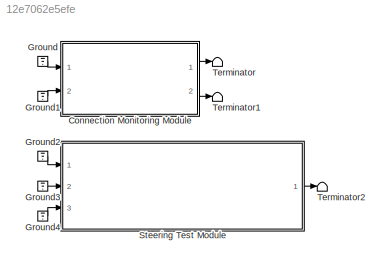
MODEL slx_12e7062e5efe
KIND model
CONFIG AbsTol = auto
CONFIG EnableMultiTasking = on
CONFIG FixedStep = 0.002
CONFIG MaxStep = auto
CONFIG MinStep = auto
CONFIG RelTol = 1e-3
CONFIG SampleTimeConstraint = Unconstrained
CONFIG Solver = ode2
CONFIG SolverName = ode2
CONFIG StartTime = 0.0
CONFIG StopTime = inf
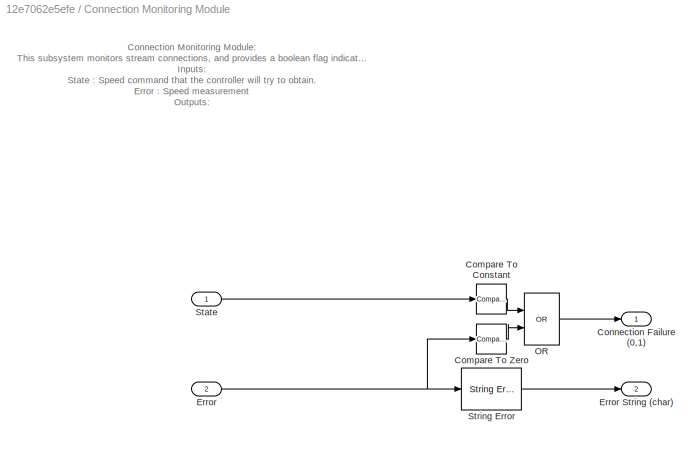
BLOCK [SubSystem] Connection Monitoring Module
  Ports = [2, 2]
  RequestExecContextInheritance = off
BLOCK [Reference] Connection Monitoring Module/Compare To Constant  REF=simulink/Logic and Bit
Operations/Compare
To Constant
  Ports = [1, 1]
  SourceBlock = simulink/Logic and Bit\nOperations/Compare\nTo Constant
  SourceProductBaseCode = SL
  SourceProductName = Simulink
  SourceType = Compare To Constant
BLOCK [Reference] Connection Monitoring Module/Compare To Zero  REF=simulink/Logic and Bit
Operations/Compare
To Zero
  Ports = [1, 1]
  SourceBlock = simulink/Logic and Bit\nOperations/Compare\nTo Zero
  SourceProductBaseCode = SL
  SourceProductName = Simulink
  SourceType = Compare To Zero
BLOCK [Outport] Connection Monitoring Module/Connection Failure (0,1)
  IconDisplay = Port number
BLOCK [Inport] Connection Monitoring Module/Error
  IconDisplay = Port number
  Port = 2
BLOCK [Outport] Connection Monitoring Module/Error String (char)
  IconDisplay = Port number
  Port = 2
BLOCK [Logic] Connection Monitoring Module/OR
  AllPortsSameDT = off
  IconShape = distinctive
  Operator = OR
  OutDataTypeStr = boolean
  Ports = [2, 1]
BLOCK [Inport] Connection Monitoring Module/State
  IconDisplay = Port number
BLOCK [Reference] Connection Monitoring Module/String Error  REF=quarc_library/Strings/String Error
  Ports = [1, 1]
  SourceBlock = quarc_library/Strings/String Error
  SourceProductName = QUARC Targets
  SourceType = String Error
BLOCK [Ground] Ground
BLOCK [Ground] Ground1
BLOCK [Ground] Ground2
BLOCK [Ground] Ground3
BLOCK [Ground] Ground4
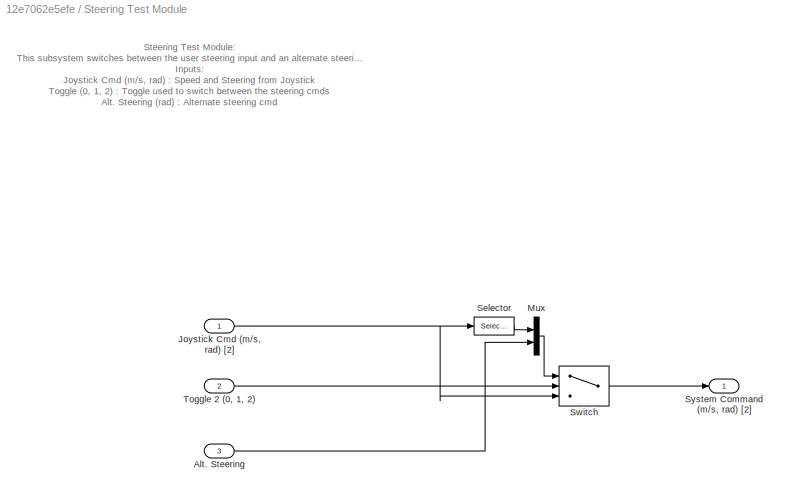
BLOCK [SubSystem] Steering Test Module
  Ports = [3, 1]
  RequestExecContextInheritance = off
BLOCK [Inport] Steering Test Module/Alt. Steering
  IconDisplay = Port number
  Port = 3
BLOCK [Inport] Steering Test Module/Joystick Cmd (m//s, rad) [2]
  IconDisplay = Port number
BLOCK [Mux] Steering Test Module/Mux
  DisplayOption = bar
  Inputs = 2
  Ports = [2, 1]
BLOCK [Selector] Steering Test Module/Selector
  IndexOptions = Index vector (dialog)
  Indices = [1]
  InputPortWidth = 2
  OutputSizes = 1
  Ports = [1, 1]
BLOCK [Switch] Steering Test Module/Switch
  Criteria = u2 > Threshold
  InputSameDT = off
  SaturateOnIntegerOverflow = off
  Threshold = 0.5
BLOCK [Outport] Steering Test Module/System Command (m//s, rad) [2]
  IconDisplay = Port number
BLOCK [Inport] Steering Test Module/Toggle 2 (0, 1, 2)
  IconDisplay = Port number
  Port = 2
BLOCK [Terminator] Terminator
BLOCK [Terminator] Terminator1
BLOCK [Terminator] Terminator2
ANNOTATION Connection Monitoring Module: Connection Monitoring Module: This subsystem monitors stream connections, and provides a boolean flag indicating a connection failure Inputs: State : Speed command that the controller will try to obtain. Error : Speed measurement Outputs: Connection Failure : Boolean flag that is high if an error code is present or the connection state is not 2 Error String (char) : String displaying the error mes...<+164ch>
ANNOTATION Steering Test Module: Steering Test Module: This subsystem switches between the user steering input and an alternate steering input (eg. from image processing) Inputs: Joystick Cmd (m/s, rad) : Speed and Steering from Joystick Toggle (0, 1, 2) : Toggle used to switch between the steering cmds Alt. Steering (rad) : Alternate steering cmd Outputs: System Command (m/s, rad) n/a : Vector output for the speed command (m/s) ...<+293ch>
LINE Connection Monitoring Module/Compare To Constant:1 -> Connection Monitoring Module/OR:1
LINE Connection Monitoring Module/Compare To Zero:1 -> Connection Monitoring Module/OR:2
NET Connection Monitoring Module/Error:1 -> Connection Monitoring Module/Compare To Zero:1, Connection Monitoring Module/String Error:1
LINE Connection Monitoring Module/OR:1 -> Connection Monitoring Module/Connection Failure (0,1):1
LINE Connection Monitoring Module/State:1 -> Connection Monitoring Module/Compare To Constant:1
LINE Connection Monitoring Module/String Error:1 -> Connection Monitoring Module/Error String (char):1
LINE Connection Monitoring Module:1 -> Terminator:1
LINE Connection Monitoring Module:2 -> Terminator1:1
LINE Ground1:1 -> Connection Monitoring Module:2
LINE Ground2:1 -> Steering Test Module:1
LINE Ground3:1 -> Steering Test Module:2
LINE Ground4:1 -> Steering Test Module:3
LINE Ground:1 -> Connection Monitoring Module:1
LINE Steering Test Module/Alt. Steering:1 -> Steering Test Module/Mux:2
NET Steering Test Module/Joystick Cmd (m//s, rad) [2]:1 -> Steering Test Module/Selector:1, Steering Test Module/Switch:3
LINE Steering Test Module/Mux:1 -> Steering Test Module/Switch:1
LINE Steering Test Module/Selector:1 -> Steering Test Module/Mux:1
LINE Steering Test Module/Switch:1 -> Steering Test Module/System Command (m//s, rad) [2]:1
LINE Steering Test Module/Toggle 2 (0, 1, 2):1 -> Steering Test Module/Switch:2
LINE Steering Test Module:1 -> Terminator2:1
note: NET lines group one-source signal fan-out (src -> all destinations, sorted); 1:1 wires keep LINE
